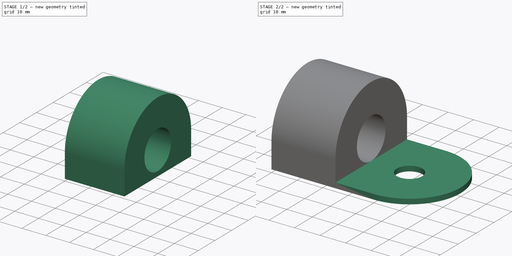
[diagram: build sequence overview — one tinted view per stage of 2, left to right]
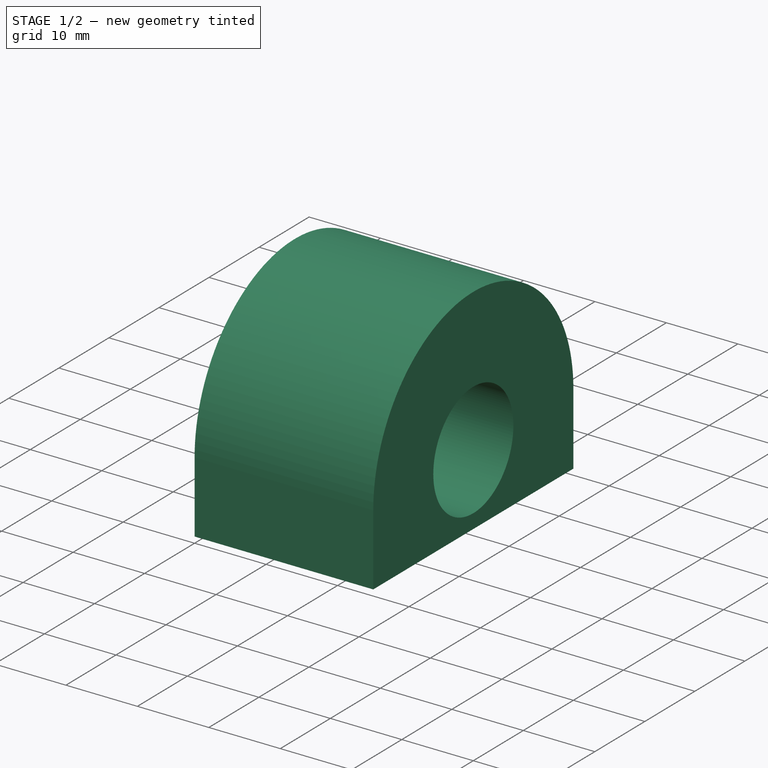
[diagram: stage 1 of 2 — iso view after this stage's code; geometry added in this stage tinted green]
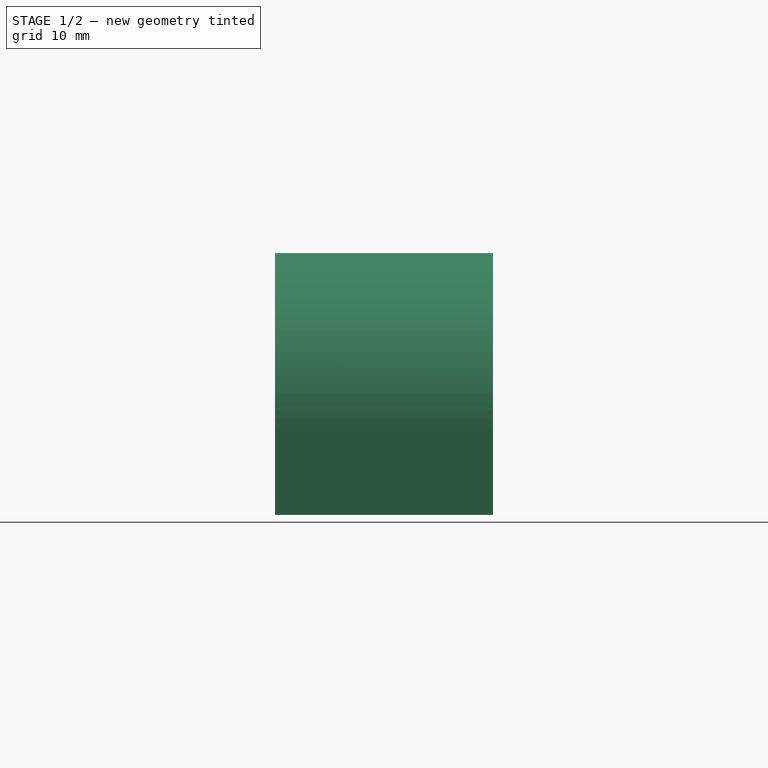
[diagram: stage 1 of 2 — front view after this stage's code; geometry added in this stage tinted green]
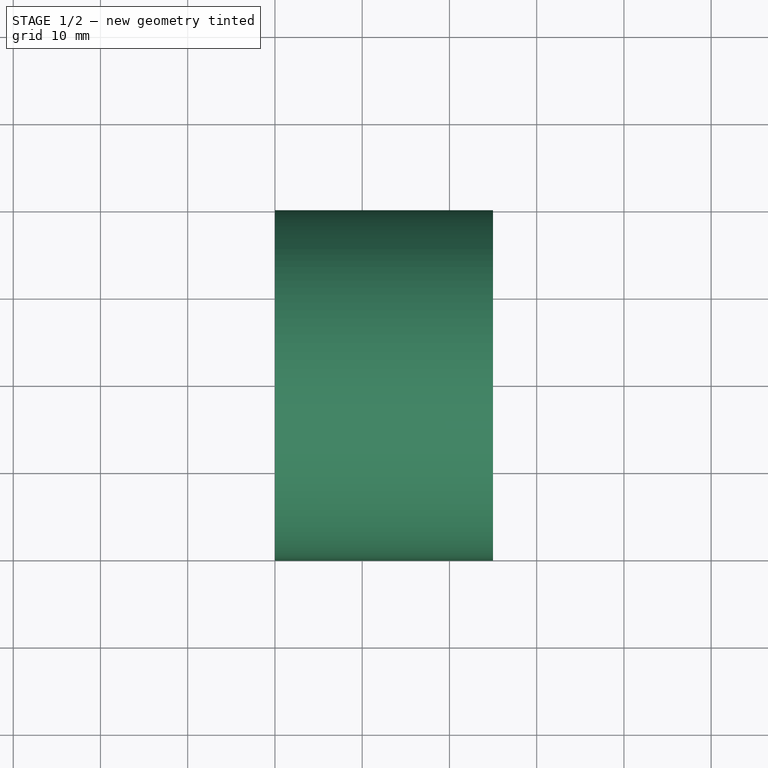
[diagram: stage 1 of 2 — top view after this stage's code; geometry added in this stage tinted green]
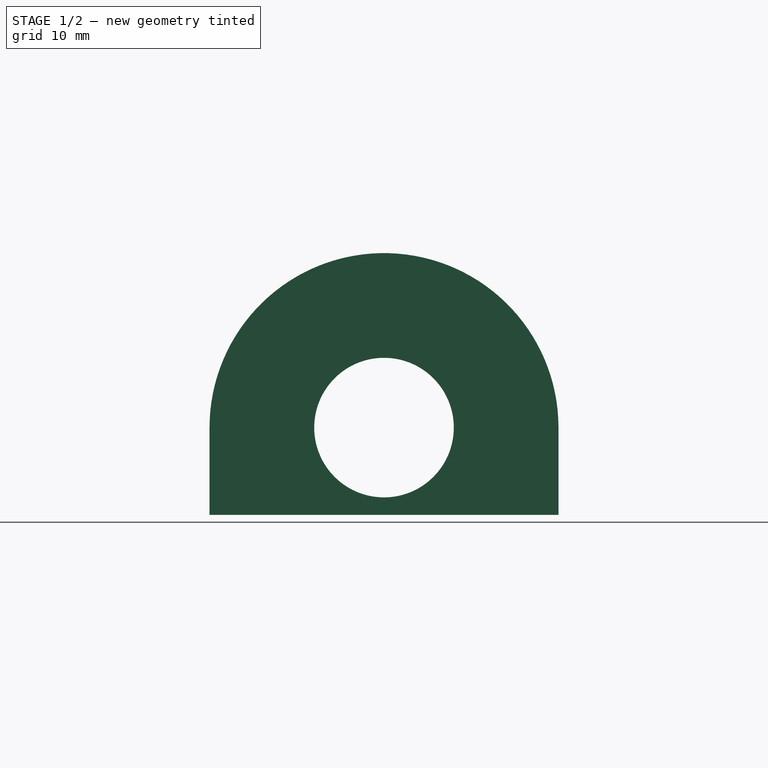
[diagram: stage 1 of 2 — right view after this stage's code; geometry added in this stage tinted green]
FCSTD DOCUMENT  (FreeCAD 0.19R)
Label: RESTRICOES-02
License: All rights reserved
LicenseURL: http://en.wikipedia.org/wiki/All_rights_reserved
objects: Sketcher::SketchObject×2, Part::Extrusion×2, Spreadsheet::Sheet×1, Part::MultiFuse×1
note: 5 computed .brp shape members not serialized (recipe doc carries the construction recipe); baked Part::Feature solids carry a one-line shape summary decoded from their .brp

FEATURE [Spreadsheet::Sheet] Spreadsheet
  cells = A1=LARGURA; B1(largura)=40; A2=COMPRIMENTO; B2(comprimento)=60; A3=ALTURA; B3(ALTURA)=30; A4=DIAMETRO MENOR XY; B4(dxy)=10; A5=EXPESSURA XY; B5(ESPESSURAXY)=2; A6=ESPESSURA YZ; B6(espessurayz)=25
FEATURE [Sketcher::SketchObject] Sketch
  expr: Constraints[16] = Spreadsheet.comprimento
  expr: Constraints[17] = Spreadsheet.largura
  expr: Constraints[18] = Spreadsheet.dxy
  sketch-geometry (7):
    g0: LineSegment StartX=0 StartY=0 StartZ=0 EndX=40 EndY=0 EndZ=0
    g1: LineSegment StartX=40 StartY=0 StartZ=0 EndX=40 EndY=40 EndZ=0
    g2: LineSegment StartX=40 StartY=40 StartZ=0 EndX=0 EndY=40 EndZ=0
    g3: LineSegment StartX=0 StartY=40 StartZ=0 EndX=0 EndY=0 EndZ=0
    g4: ArcOfCircle CenterX=40 CenterY=20 CenterZ=0 NormalX=0 NormalY=0 NormalZ=1 AngleXU=0 Radius=20 StartAngle=4.71239 EndAngle=7.85398
    g5: Circle CenterX=40 CenterY=20 CenterZ=0 NormalX=0 NormalY=0 NormalZ=1 AngleXU=0 Radius=5
    g6: LineSegment StartX=60 StartY=20 StartZ=0 EndX=0 EndY=20 EndZ=0
  constraints (19):
    c: Coincident(g0,g1)
    c: Coincident(g1,g2)
    c: Coincident(g2,g3)
    c: Coincident(g3,g0)
    c: Horizontal(g0)
    c: Horizontal(g2)
    c: Vertical(g1)
    c: Vertical(g3)
    c: Coincident(g0,g-1)
    c: Symmetric(g1,g1,g4)
    c: Coincident(g4,g0)
    c: Coincident(g4,g1)
    c: Coincident(g5,g4)
    c: PointOnObject(g6,g4)
    c: Horizontal(g6)
    c: Symmetric(g3,g3,g6)
    c: DistanceX(g6,g6) = 60
    c: DistanceY(g3,g3) = 40
    c: Diameter(g5) = 10
FEATURE [Part::Extrusion] Extrude  label="BASE"
  Base = -> Sketch
  Dir = (0,0,1)
  DirMode = 2
  FaceMakerClass = Part::FaceMakerBullseye
  LengthFwd = 2
  LengthRev = 0
  Solid = true
  Symmetric = false
  expr: LengthFwd = Spreadsheet.ESPESSURAXY
FEATURE [Sketcher::SketchObject] Sketch001
  ExternalGeometry = -> [Extrude]
  MapMode = 5
  Placement = pos=(0,0,0) rot=(0.57735,-0.57735,-0.57735;2.0944rad)
  Support = -> [Extrude]
  expr: Constraints[17] = Spreadsheet.ALTURA
  sketch-geometry (7):
    g0: LineSegment StartX=-40 StartY=0 StartZ=0 EndX=-40 EndY=10 EndZ=0
    g1: LineSegment StartX=-40 StartY=10 StartZ=0 EndX=0 EndY=10 EndZ=0
    g2: Circle CenterX=-20 CenterY=10 CenterZ=0 NormalX=0 NormalY=0 NormalZ=1 AngleXU=0 Radius=8
    g3: LineSegment StartX=0 StartY=10 StartZ=0 EndX=0 EndY=0 EndZ=0
    g4: LineSegment StartX=-40 StartY=0 StartZ=0 EndX=0 EndY=0 EndZ=0
    g5: ArcOfCircle CenterX=-20 CenterY=10 CenterZ=0 NormalX=0 NormalY=0 NormalZ=1 AngleXU=0 Radius=20 StartAngle=0 EndAngle=3.14159
    g6: LineSegment StartX=-20 StartY=0 StartZ=0 EndX=-20 EndY=30 EndZ=0
  constraints (18):
    c: Coincident(g0,g1)
    c: Horizontal(g1)
    c: Vertical(g0)
    c: Symmetric(g1,g1,g2)
    c: Coincident(g1,g3) = 1.5708
    c: Coincident(g0,g-4)
    c: Coincident(g3,g-1)
    c: Coincident(g4,g0)
    c: Coincident(g4,g3)
    c: Tangent(g2,g-3)
    c: Coincident(g5,g2)
    c: Coincident(g5,g1)
    c: Coincident(g0,g5)
    c: Vertical(g3)
    c: PointOnObject(g6,g5)
    c: Vertical(g6)
    c: Symmetric(g4,g4,g6)
    c: DistanceY(g6,g6) = 30
FEATURE [Part::Extrusion] Extrude001  label="LATERAL"
  Base = -> Sketch001
  Dir = (1,0,0)
  DirMode = 0
  FaceMakerClass = Part::FaceMakerBullseye
  LengthFwd = 25
  LengthRev = 0
  Solid = true
  Symmetric = false
  expr: LengthFwd = Spreadsheet.espessurayz
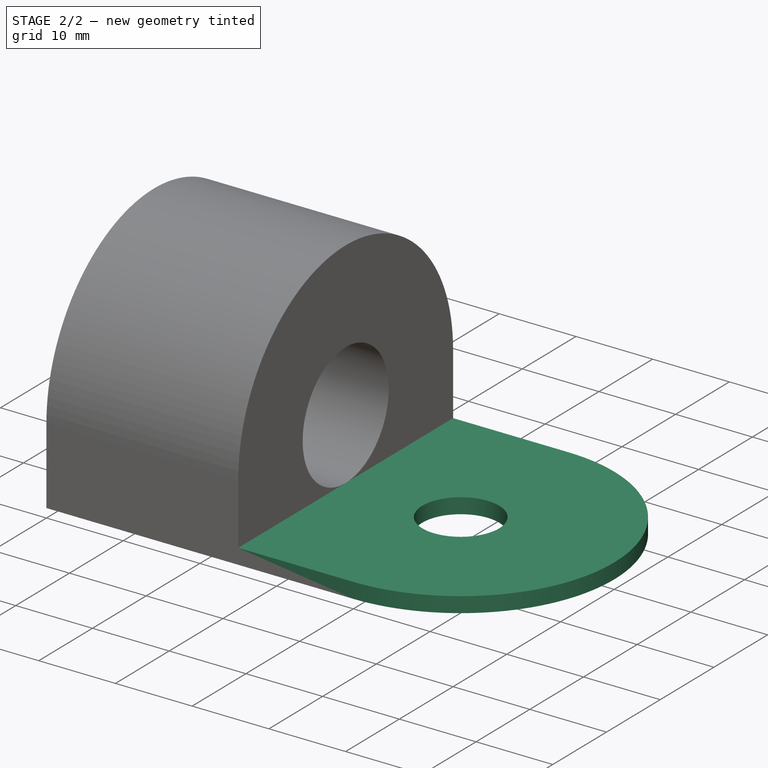
[diagram: stage 2 of 2 — iso view after this stage's code; geometry added in this stage tinted green]
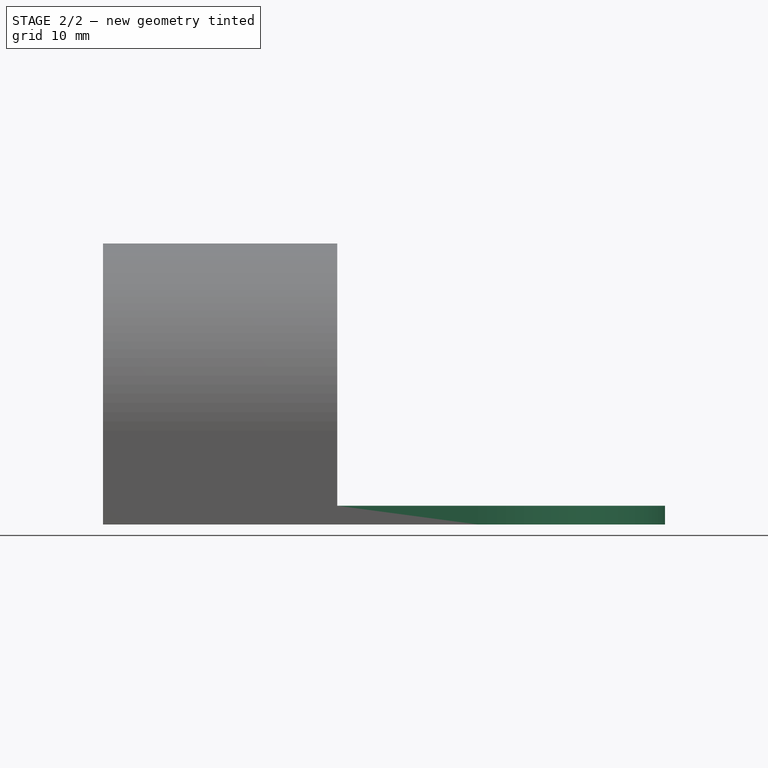
[diagram: stage 2 of 2 — front view after this stage's code; geometry added in this stage tinted green]
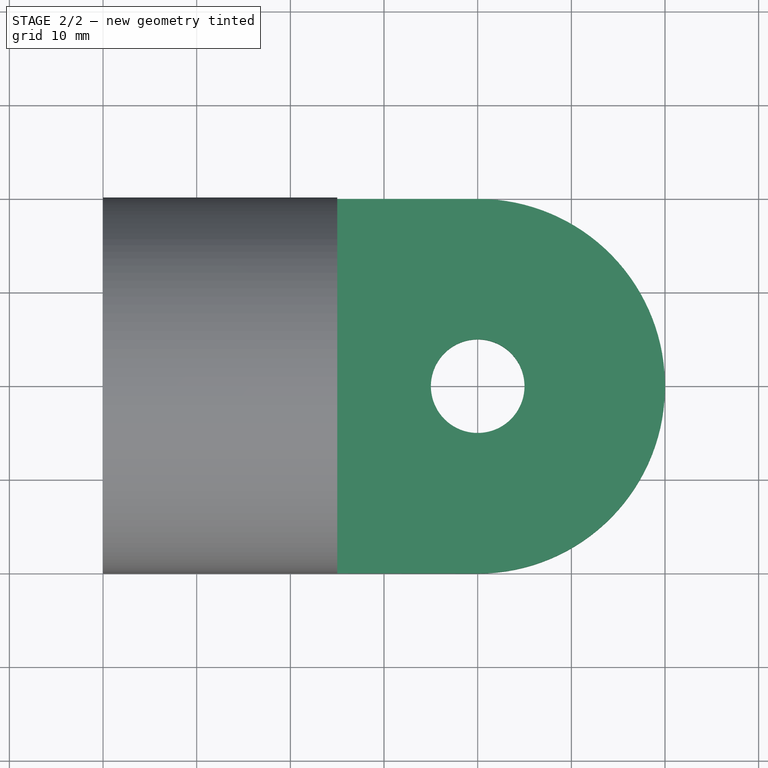
[diagram: stage 2 of 2 — top view after this stage's code; geometry added in this stage tinted green]
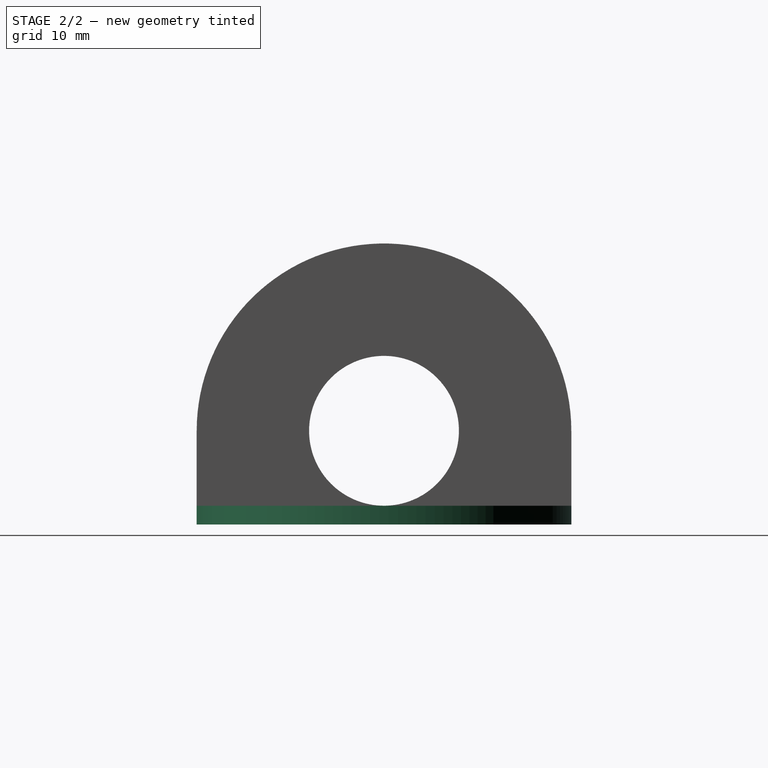
[diagram: stage 2 of 2 — right view after this stage's code; geometry added in this stage tinted green]
FEATURE [Part::MultiFuse] Fusion
  Refine = true
  Shapes = -> [Extrude,Extrude001]
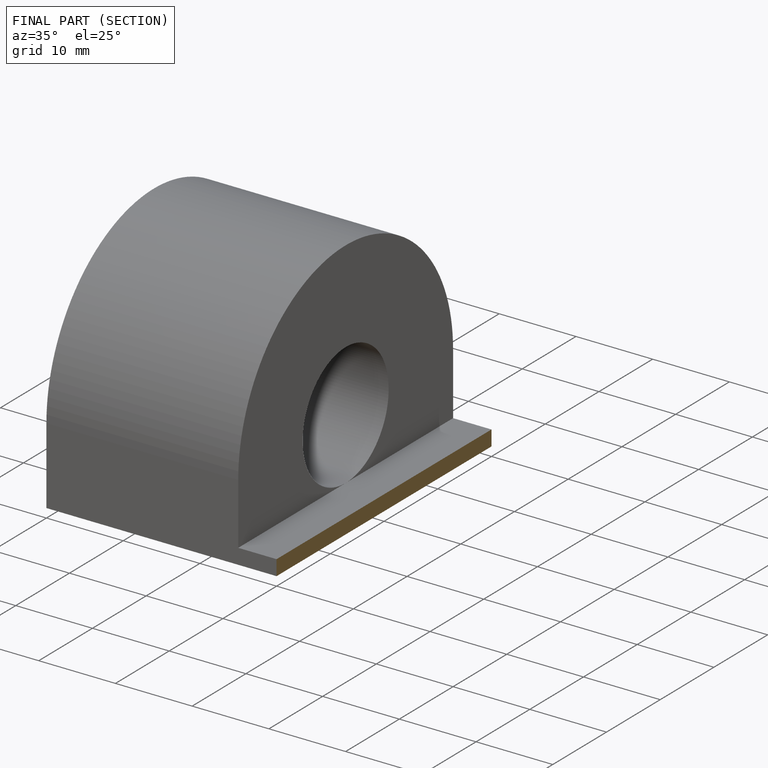
[diagram: finished part — half-section view (interior)]
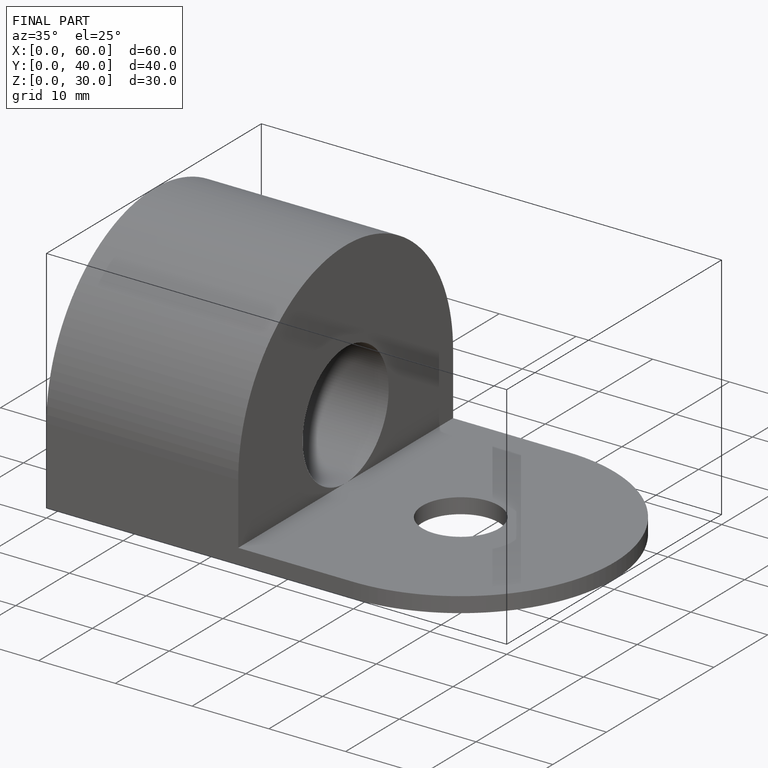
[diagram: finished part — iso view with bounding-box wireframe]
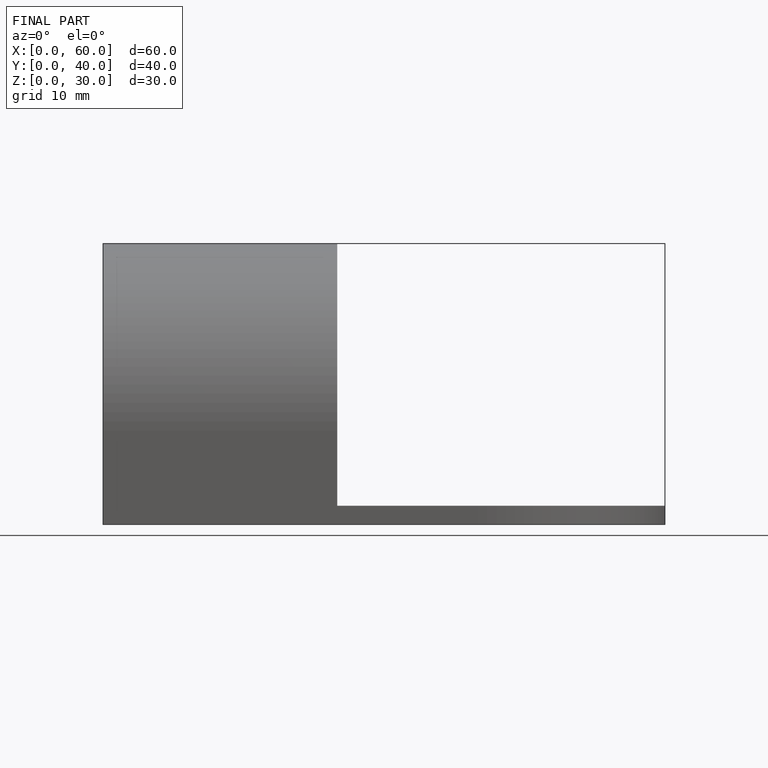
[diagram: finished part — front view with bounding-box wireframe]
